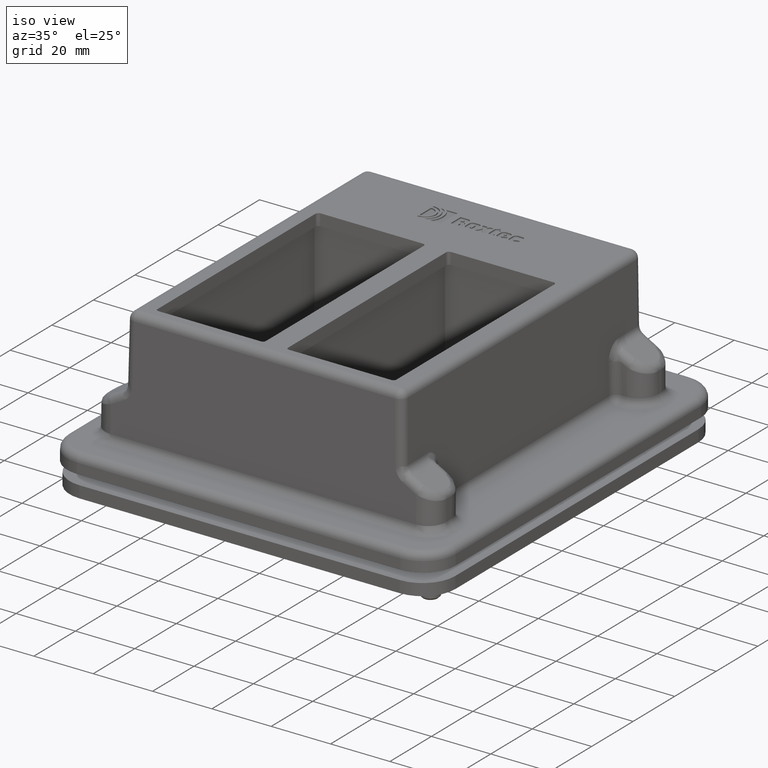
[diagram: clean part render]
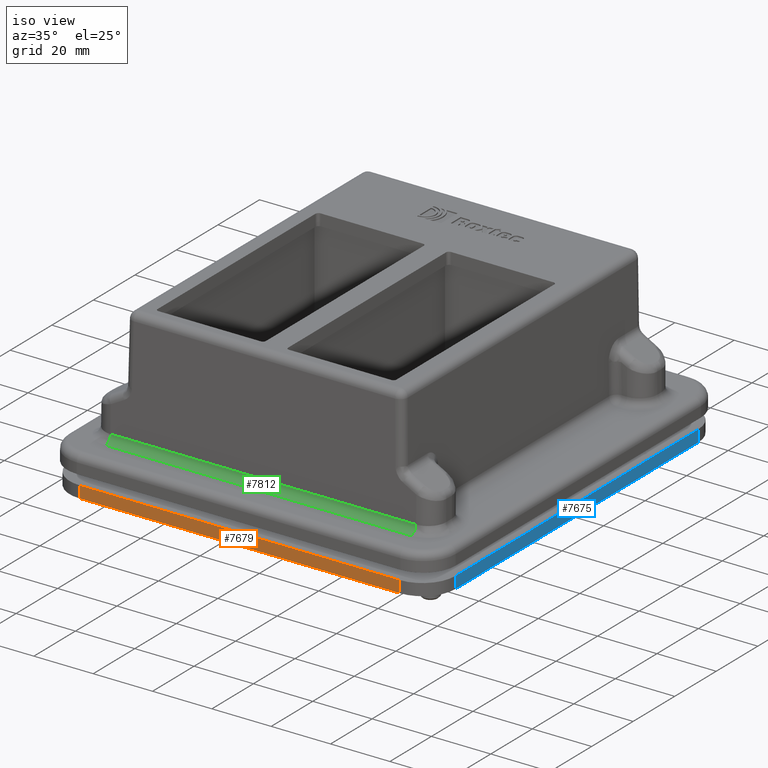
[diagram: same view with three faces highlighted in distinct colors, each labeled with its STEP entity id]
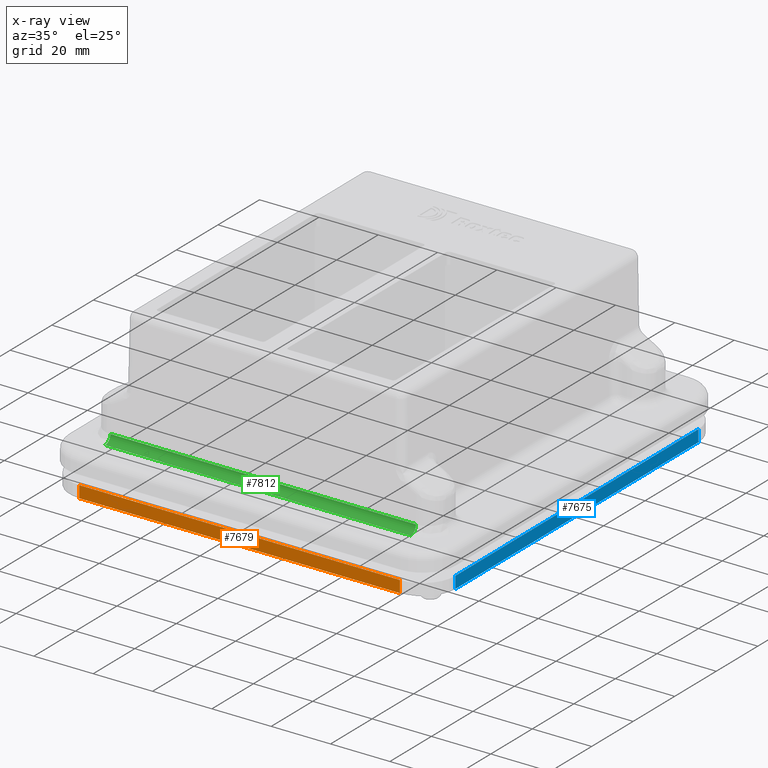
[diagram: x-ray of the same camera — body ghosted, the three highlighted faces saturated]
A machine part, iso view with three faces highlighted in distinct colors.
The next image is the same camera in x-ray (body ghosted, the three faces saturated) — at least one of them is partly hidden behind the body in this view.
Their STEP definitions:

[orange] entity #7679 — the highlighted planar face has unit normal (0, -1, -0).
#318=LINE('',#10854,#962);
#361=LINE('',#11279,#1005);
#383=LINE('',#11351,#1027);
#403=LINE('',#11394,#1047);
#962=VECTOR('',#8798,10.);
#1005=VECTOR('',#9063,10.);
#1027=VECTOR('',#9131,10.);
#1047=VECTOR('',#9197,10.);
#1864=FACE_OUTER_BOUND('',#2322,.T.);
#2322=EDGE_LOOP('',(#5239,#5240,#5241,#5242));
#2974=VERTEX_POINT('',#10851);
#2975=VERTEX_POINT('',#10853);
#3083=VERTEX_POINT('',#11276);
#3084=VERTEX_POINT('',#11278);
#3681=EDGE_CURVE('',#2975,#2974,#318,.T.);
#3836=EDGE_CURVE('',#3083,#3084,#361,.T.);
#3875=EDGE_CURVE('',#2975,#3083,#383,.T.);
#3895=EDGE_CURVE('',#3084,#2974,#403,.T.);
#5239=ORIENTED_EDGE('',*,*,#3681,.T.);
#5240=ORIENTED_EDGE('',*,*,#3895,.F.);
#5241=ORIENTED_EDGE('',*,*,#3836,.F.);
#5242=ORIENTED_EDGE('',*,*,#3875,.F.);
#6956=PLANE('',#8233);
#7679=ADVANCED_FACE('',(#1864),#6956,.T.);
#8233=AXIS2_PLACEMENT_3D('',#11402,#9209,#9210);
#8798=DIRECTION('',(1.,9.30456750273975E-17,-8.75497575075085E-19));
#9063=DIRECTION('',(1.,9.30456750273975E-17,-8.75497575075085E-19));
#9131=DIRECTION('',(8.75497575075085E-19,-1.32569129620573E-48,1.));
#9197=DIRECTION('',(-8.75497575075085E-19,1.32569129620573E-48,-1.));
#9209=DIRECTION('center_axis',(9.30456750273975E-17,-1.,-8.14612628577122E-35));
#9210=DIRECTION('ref_axis',(1.,9.30456750273975E-17,-8.75497575075085E-19));
#10851=CARTESIAN_POINT('',(54.,-69.5,-50.5));
#10853=CARTESIAN_POINT('',(-54.,-69.5,-50.5));
#10854=CARTESIAN_POINT('',(-50.75,-69.5,-50.5));
#11276=CARTESIAN_POINT('',(-54.,-69.5,-46.5));
#11278=CARTESIAN_POINT('',(54.,-69.5,-46.5));
#11279=CARTESIAN_POINT('',(-50.75,-69.5,-46.5));
#11351=CARTESIAN_POINT('',(-54.,-69.5,-50.5));
#11394=CARTESIAN_POINT('',(54.,-69.5,-50.5));
#11402=CARTESIAN_POINT('Origin',(-50.75,-69.5,-50.5));

[blue] entity #7675 — the highlighted planar face has unit normal (1, 0, -0).
#317=LINE('',#10850,#961);
#362=LINE('',#11283,#1006);
#404=LINE('',#11395,#1048);
#405=LINE('',#11397,#1049);
#961=VECTOR('',#8795,10.);
#1006=VECTOR('',#9066,10.);
#1048=VECTOR('',#9198,10.);
#1049=VECTOR('',#9201,10.);
#1860=FACE_OUTER_BOUND('',#2318,.T.);
#2318=EDGE_LOOP('',(#5223,#5224,#5225,#5226));
#2972=VERTEX_POINT('',#10847);
#2973=VERTEX_POINT('',#10849);
#3085=VERTEX_POINT('',#11280);
#3086=VERTEX_POINT('',#11282);
#3679=EDGE_CURVE('',#2973,#2972,#317,.T.);
#3838=EDGE_CURVE('',#3085,#3086,#362,.T.);
#3896=EDGE_CURVE('',#2973,#3085,#404,.T.);
#3897=EDGE_CURVE('',#3086,#2972,#405,.T.);
#5223=ORIENTED_EDGE('',*,*,#3896,.F.);
#5224=ORIENTED_EDGE('',*,*,#3679,.T.);
#5225=ORIENTED_EDGE('',*,*,#3897,.F.);
#5226=ORIENTED_EDGE('',*,*,#3838,.F.);
#6954=PLANE('',#8229);
#7675=ADVANCED_FACE('',(#1860),#6954,.T.);
#8229=AXIS2_PLACEMENT_3D('',#11396,#9199,#9200);
#8795=DIRECTION('',(-1.63131981634558E-17,1.,1.42821654338262E-35));
#9066=DIRECTION('',(-1.63131981634558E-17,1.,1.42821654338262E-35));
#9198=DIRECTION('',(8.75497575075085E-19,-1.32569129620573E-48,1.));
#9199=DIRECTION('center_axis',(1.,1.63131981634558E-17,-8.75497575075085E-19));
#9200=DIRECTION('ref_axis',(-1.63131981634558E-17,1.,1.42821654338262E-35));
#9201=DIRECTION('',(-8.75497575075085E-19,1.32569129620573E-48,-1.));
#10847=CARTESIAN_POINT('',(65.,58.5,-50.5));
#10849=CARTESIAN_POINT('',(65.,-58.5,-50.5));
#10850=CARTESIAN_POINT('',(65.,-69.5,-50.5));
#11280=CARTESIAN_POINT('',(65.,-58.5,-46.5));
#11282=CARTESIAN_POINT('',(65.,58.5,-46.5));
#11283=CARTESIAN_POINT('',(65.,-69.5,-46.5));
#11395=CARTESIAN_POINT('',(65.,-58.5,-50.5));
#11396=CARTESIAN_POINT('Origin',(65.,-69.5,-50.5));
#11397=CARTESIAN_POINT('',(65.,58.5,-50.5));

[green] entity #7812 — the highlighted cylindrical surface (edge-blend (fillet) strip) has radius 2.5 mm, axis along (-1, 0, -0).
#272=CYLINDRICAL_SURFACE('',#8508,2.5);
#526=LINE('',#12297,#1170);
#545=LINE('',#12353,#1189);
#1170=VECTOR('',#9754,10.);
#1189=VECTOR('',#9805,10.);
#1997=FACE_OUTER_BOUND('',#2459,.T.);
#2459=EDGE_LOOP('',(#5824,#5825,#5826,#5827));
#2907=CIRCLE('',#8507,2.5);
#2908=CIRCLE('',#8509,2.50000000000001);
#3263=VERTEX_POINT('',#12294);
#3264=VERTEX_POINT('',#12296);
#3284=VERTEX_POINT('',#12348);
#3285=VERTEX_POINT('',#12352);
#4143=EDGE_CURVE('',#3264,#3263,#526,.T.);
#4171=EDGE_CURVE('',#3284,#3285,#545,.T.);
#4201=EDGE_CURVE('',#3285,#3264,#2907,.T.);
#4202=EDGE_CURVE('',#3284,#3263,#2908,.T.);
#5824=ORIENTED_EDGE('',*,*,#4201,.T.);
#5825=ORIENTED_EDGE('',*,*,#4143,.T.);
#5826=ORIENTED_EDGE('',*,*,#4202,.F.);
#5827=ORIENTED_EDGE('',*,*,#4171,.T.);
#7812=ADVANCED_FACE('',(#1997),#272,.F.);
#8507=AXIS2_PLACEMENT_3D('',#12440,#9903,#9904);
#8508=AXIS2_PLACEMENT_3D('',#12441,#9905,#9906);
#8509=AXIS2_PLACEMENT_3D('',#12442,#9907,#9908);
#9754=DIRECTION('',(1.,0.,1.22464679914735E-16));
#9805=DIRECTION('',(-1.,0.,-1.22464679914735E-16));
#9903=DIRECTION('center_axis',(-1.,0.,-1.22464679914735E-16));
#9904=DIRECTION('ref_axis',(2.13730336808389E-18,0.999847695156391,-0.0174524064372843));
#9905=DIRECTION('center_axis',(-1.,0.,-1.22464679914735E-16));
#9906=DIRECTION('ref_axis',(8.73479879547081E-17,0.700909264299851,-0.713250449154182));
#9907=DIRECTION('center_axis',(-1.,0.,-1.22464679914735E-16));
#9908=DIRECTION('ref_axis',(2.13730336808389E-18,0.999847695156391,-0.0174524064372843));
#12294=CARTESIAN_POINT('',(51.5,-60.6724008198461,-37.));
#12296=CARTESIAN_POINT('',(-51.5,-60.6724008198461,-37.));
#12297=CARTESIAN_POINT('',(23.25,-60.6724008198461,-37.));
#12348=CARTESIAN_POINT('',(51.5,-58.1727815819551,-34.5436310160932));
#12352=CARTESIAN_POINT('',(-51.5,-58.1727815819551,-34.5436310160932));
#12353=CARTESIAN_POINT('',(23.25,-58.1727815819552,-34.5436310160932));
#12440=CARTESIAN_POINT('Origin',(-51.5,-60.6724008198461,-34.5));
#12441=CARTESIAN_POINT('Origin',(23.25,-60.6724008198461,-34.5));
#12442=CARTESIAN_POINT('Origin',(51.5,-60.6724008198461,-34.5));